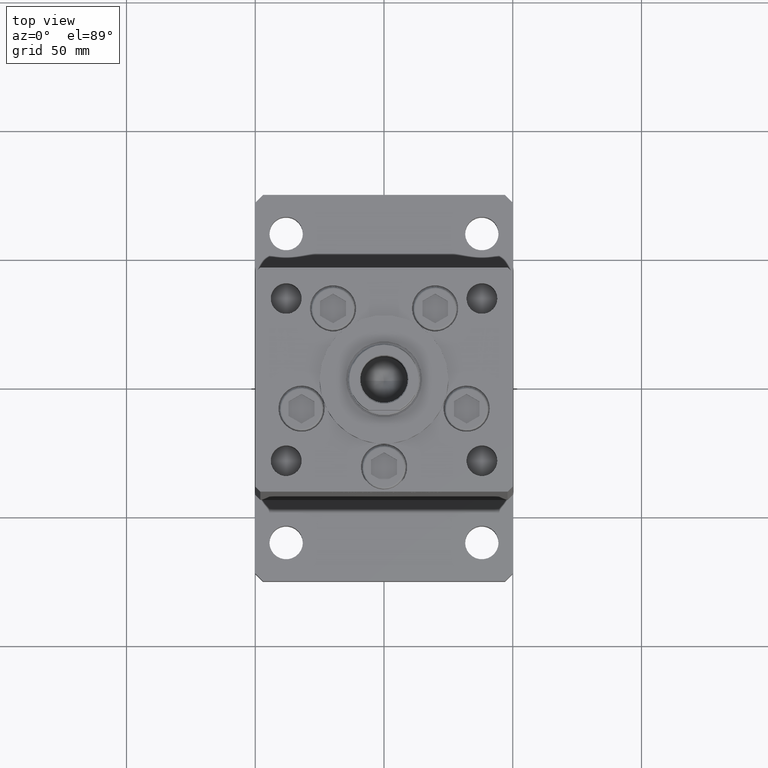
[diagram: clean part render]
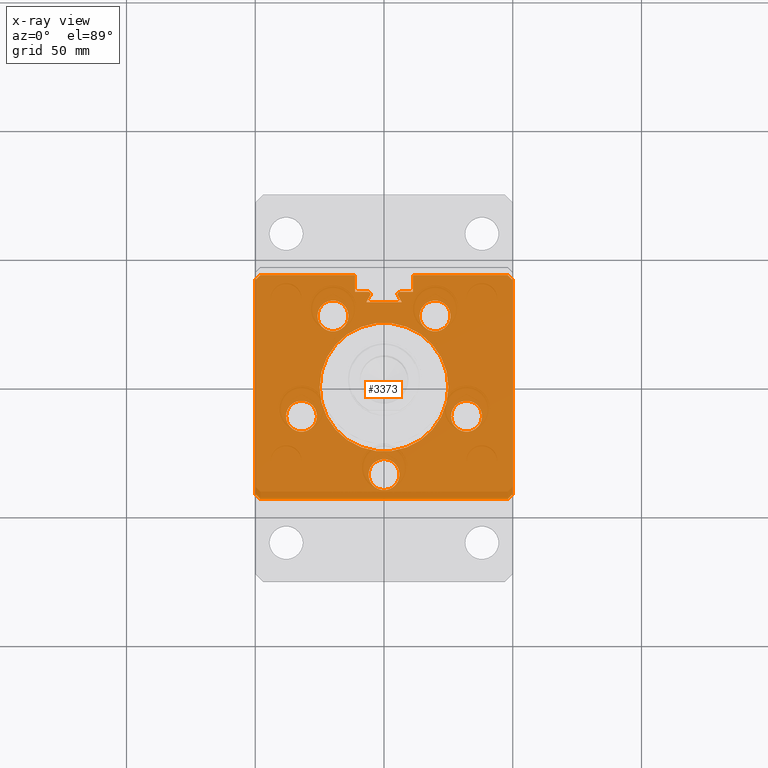
[diagram: x-ray — body ghosted, one internal face saturated and labeled with its STEP entity id]
A machine part, top view, then the same camera in x-ray: the body is ghosted and one INTERNAL B-rep face — a face not visible from any outside direction — is saturated and labeled: STEP entity #3373.
In plain terms, the highlighted planar face has unit normal (0, 0, -1).
Its self-contained STEP definition (entity closure, byte-faithful):
#58 = VERTEX_POINT ( 'NONE', #5850 ) ;
#451 = VERTEX_POINT ( 'NONE', #42141 ) ;
#480 = ORIENTED_EDGE ( 'NONE', *, *, #14333, .F. ) ;
#589 = VERTEX_POINT ( 'NONE', #30699 ) ;
#679 = LINE ( 'NONE', #33785, #33973 ) ;
#1650 = CARTESIAN_POINT ( 'NONE',  ( 4.163799117101000559E-15, -34.00000000000000000, 0.000000000000000000 ) ) ;
#2054 = CIRCLE ( 'NONE', #32417, 5.999999999999998224 ) ;
#2131 = FACE_BOUND ( 'NONE', #52309, .T. ) ;
#2296 = DIRECTION ( 'NONE',  ( -0.000000000000000000, -0.000000000000000000, -1.000000000000000000 ) ) ;
#2641 = CARTESIAN_POINT ( 'NONE',  ( -32.05550741379015989, -11.33333333333333570, 0.000000000000000000 ) ) ;
#2802 = VERTEX_POINT ( 'NONE', #27227 ) ;
#3373 = ADVANCED_FACE ( 'NONE', ( #10794, #2131, #39307, #43945, #36059, #39856, #14330 ), #35507, .T. ) ;
#3459 = EDGE_CURVE ( 'NONE', #451, #12507, #20307, .T. ) ;
#3574 = CARTESIAN_POINT ( 'NONE',  ( 50.00000000000001421, 41.49999999999999289, 0.000000000000000000 ) ) ;
#3786 = DIRECTION ( 'NONE',  ( 1.000000000000000000, 0.000000000000000000, 0.000000000000000000 ) ) ;
#3938 = DIRECTION ( 'NONE',  ( -0.000000000000000000, -1.000000000000000000, -0.000000000000000000 ) ) ;
#4102 = CARTESIAN_POINT ( 'NONE',  ( -50.00000000000001421, 41.49999999999999289, 0.000000000000000000 ) ) ;
#4200 = DIRECTION ( 'NONE',  ( 0.7071067811865474617, -0.7071067811865474617, 0.000000000000000000 ) ) ;
#4484 = VERTEX_POINT ( 'NONE', #18625 ) ;
#4496 = DIRECTION ( 'NONE',  ( -0.4999999999999996114, -0.8660254037844388186, -0.000000000000000000 ) ) ;
#4531 = CARTESIAN_POINT ( 'NONE',  ( -49.99999999999998579, -41.49999999999999289, 0.000000000000000000 ) ) ;
#4613 = CARTESIAN_POINT ( 'NONE',  ( 26.05550741379015989, -11.33333333333332682, 0.000000000000000000 ) ) ;
#4699 = ORIENTED_EDGE ( 'NONE', *, *, #34548, .T. ) ;
#4740 = CIRCLE ( 'NONE', #14248, 25.00000000000000000 ) ;
#4884 = ORIENTED_EDGE ( 'NONE', *, *, #37646, .F. ) ;
#5022 = VERTEX_POINT ( 'NONE', #17473 ) ;
#5115 = ORIENTED_EDGE ( 'NONE', *, *, #3459, .T. ) ;
#5325 = CARTESIAN_POINT ( 'NONE',  ( -48.00000000000001421, 43.50000000000000711, 0.000000000000000000 ) ) ;
#5569 = VERTEX_POINT ( 'NONE', #13530 ) ;
#5743 = DIRECTION ( 'NONE',  ( 0.000000000000000000, 1.000000000000000000, 0.000000000000000000 ) ) ;
#5850 = CARTESIAN_POINT ( 'NONE',  ( -13.82068048781373726, 27.62500000000000355, 0.000000000000000000 ) ) ;
#6186 = DIRECTION ( 'NONE',  ( -1.000000000000000000, 0.000000000000000000, -0.000000000000000000 ) ) ;
#6295 = VERTEX_POINT ( 'NONE', #4613 ) ;
#6719 = DIRECTION ( 'NONE',  ( 1.000000000000000000, -0.000000000000000000, -0.000000000000000000 ) ) ;
#6907 = VECTOR ( 'NONE', #26689, 1000.000000000000000 ) ;
#7122 = DIRECTION ( 'NONE',  ( -1.000000000000000000, 0.000000000000000000, 0.000000000000000000 ) ) ;
#7662 = VERTEX_POINT ( 'NONE', #45509 ) ;
#7858 = CIRCLE ( 'NONE', #52084, 0.9333333333340008142 ) ;
#7978 = EDGE_CURVE ( 'NONE', #6295, #7662, #33261, .T. ) ;
#8539 = CARTESIAN_POINT ( 'NONE',  ( -6.876153656360465050, 32.99999999999986500, 0.000000000000000000 ) ) ;
#8639 = CIRCLE ( 'NONE', #32952, 0.9333333333340008142 ) ;
#8801 = ORIENTED_EDGE ( 'NONE', *, *, #34509, .F. ) ;
#9015 = ORIENTED_EDGE ( 'NONE', *, *, #20191, .F. ) ;
#9237 = ORIENTED_EDGE ( 'NONE', *, *, #36544, .T. ) ;
#9348 = CARTESIAN_POINT ( 'NONE',  ( 0.000000000000000000, 0.000000000000000000, 0.000000000000000000 ) ) ;
#9616 = DIRECTION ( 'NONE',  ( 1.000000000000000000, 0.000000000000000000, 0.000000000000000000 ) ) ;
#9767 = CARTESIAN_POINT ( 'NONE',  ( 11.24999999999999822, 36.99999999999999289, 0.000000000000000000 ) ) ;
#9937 = ORIENTED_EDGE ( 'NONE', *, *, #51486, .F. ) ;
#10125 = CARTESIAN_POINT ( 'NONE',  ( -11.24999999999999822, 43.50000000000000000, 0.000000000000000000 ) ) ;
#10161 = EDGE_CURVE ( 'NONE', #2802, #5022, #4740, .T. ) ;
#10292 = DIRECTION ( 'NONE',  ( 1.000000000000000000, 0.000000000000000000, 0.000000000000000000 ) ) ;
#10315 = LINE ( 'NONE', #48087, #35537 ) ;
#10794 = FACE_BOUND ( 'NONE', #27155, .T. ) ;
#11138 = CARTESIAN_POINT ( 'NONE',  ( -11.24999999999999822, 43.50000000000000000, 0.000000000000000000 ) ) ;
#11198 = CIRCLE ( 'NONE', #41560, 5.999999999999998224 ) ;
#11276 = LINE ( 'NONE', #34898, #24043 ) ;
#11280 = VERTEX_POINT ( 'NONE', #24259 ) ;
#11730 = CARTESIAN_POINT ( 'NONE',  ( 32.05550741379015989, -11.33333333333332682, 0.000000000000000000 ) ) ;
#11789 = ORIENTED_EDGE ( 'NONE', *, *, #43529, .T. ) ;
#11818 = VECTOR ( 'NONE', #4200, 1000.000000000000114 ) ;
#11958 = VERTEX_POINT ( 'NONE', #49376 ) ;
#12385 = AXIS2_PLACEMENT_3D ( 'NONE', #30090, #46667, #29824 ) ;
#12507 = VERTEX_POINT ( 'NONE', #3574 ) ;
#12602 = CARTESIAN_POINT ( 'NONE',  ( -11.24999999999999822, 36.99999999999999289, 0.000000000000000000 ) ) ;
#13178 = EDGE_CURVE ( 'NONE', #14989, #58, #15074, .T. ) ;
#13192 = AXIS2_PLACEMENT_3D ( 'NONE', #35958, #39481, #14232 ) ;
#13291 = AXIS2_PLACEMENT_3D ( 'NONE', #33994, #50561, #33207 ) ;
#13498 = LINE ( 'NONE', #47426, #33858 ) ;
#13530 = CARTESIAN_POINT ( 'NONE',  ( 6.183333333333997928, 36.99999999999999289, 0.000000000000000000 ) ) ;
#13916 = ORIENTED_EDGE ( 'NONE', *, *, #48284, .F. ) ;
#14167 = CIRCLE ( 'NONE', #28062, 6.000000000000001776 ) ;
#14232 = DIRECTION ( 'NONE',  ( -1.000000000000000000, 0.000000000000000000, 0.000000000000000000 ) ) ;
#14248 = AXIS2_PLACEMENT_3D ( 'NONE', #24414, #40974, #3786 ) ;
#14330 = FACE_BOUND ( 'NONE', #45918, .T. ) ;
#14333 = EDGE_CURVE ( 'NONE', #4484, #47372, #2054, .T. ) ;
#14377 = CARTESIAN_POINT ( 'NONE',  ( 6.183333333333997928, 36.06666666666598786, 0.000000000000000000 ) ) ;
#14466 = ORIENTED_EDGE ( 'NONE', *, *, #36188, .F. ) ;
#14662 = VERTEX_POINT ( 'NONE', #35667 ) ;
#14989 = VERTEX_POINT ( 'NONE', #22312 ) ;
#15074 = CIRCLE ( 'NONE', #26337, 6.000000000000001776 ) ;
#15622 = VECTOR ( 'NONE', #49442, 1000.000000000000000 ) ;
#15905 = VERTEX_POINT ( 'NONE', #43693 ) ;
#15925 = LINE ( 'NONE', #28676, #25083 ) ;
#16229 = CARTESIAN_POINT ( 'NONE',  ( 48.00000000000000711, 43.50000000000000000, 0.000000000000000000 ) ) ;
#16346 = DIRECTION ( 'NONE',  ( -1.000000000000000000, 0.000000000000000000, 0.000000000000000000 ) ) ;
#16612 = CARTESIAN_POINT ( 'NONE',  ( 19.82068048781373548, 27.62500000000000711, 0.000000000000000000 ) ) ;
#16878 = EDGE_LOOP ( 'NONE', ( #20747, #40749 ) ) ;
#17473 = CARTESIAN_POINT ( 'NONE',  ( 25.00000000000000000, 3.061616997868383043E-15, 0.000000000000000000 ) ) ;
#18461 = CARTESIAN_POINT ( 'NONE',  ( 6.000000000000004441, -34.00000000000000000, 0.000000000000000000 ) ) ;
#18625 = CARTESIAN_POINT ( 'NONE',  ( -38.05550741379015989, -11.33333333333333570, 0.000000000000000000 ) ) ;
#18811 = ORIENTED_EDGE ( 'NONE', *, *, #28713, .T. ) ;
#19237 = AXIS2_PLACEMENT_3D ( 'NONE', #51533, #47737, #6186 ) ;
#19368 = DIRECTION ( 'NONE',  ( -1.000000000000000000, 0.000000000000000000, 0.000000000000000000 ) ) ;
#19638 = ORIENTED_EDGE ( 'NONE', *, *, #52233, .T. ) ;
#20092 = CARTESIAN_POINT ( 'NONE',  ( -11.24999999999999822, 36.99999999999999289, 0.000000000000000000 ) ) ;
#20191 = EDGE_CURVE ( 'NONE', #25283, #51602, #49276, .T. ) ;
#20307 = LINE ( 'NONE', #16229, #33947 ) ;
#20416 = CARTESIAN_POINT ( 'NONE',  ( -5.999999999999995559, -34.00000000000000000, 0.000000000000000000 ) ) ;
#20654 = LINE ( 'NONE', #4102, #15622 ) ;
#20747 = ORIENTED_EDGE ( 'NONE', *, *, #13178, .F. ) ;
#21045 = LINE ( 'NONE', #29710, #25918 ) ;
#21414 = EDGE_CURVE ( 'NONE', #29505, #5569, #34495, .T. ) ;
#21442 = CARTESIAN_POINT ( 'NONE',  ( -32.05550741379015989, -11.33333333333333570, 0.000000000000000000 ) ) ;
#21450 = EDGE_LOOP ( 'NONE', ( #32016, #41528, #39437, #9237, #39911, #19638, #51299, #23634, #18811, #47322, #14466, #5115, #4699, #11789, #9937, #9015, #4884, #46152, #36579 ) ) ;
#21621 = VERTEX_POINT ( 'NONE', #32357 ) ;
#21628 = VERTEX_POINT ( 'NONE', #20416 ) ;
#21888 = DIRECTION ( 'NONE',  ( -0.7071067811865463515, -0.7071067811865487940, 0.000000000000000000 ) ) ;
#22036 = DIRECTION ( 'NONE',  ( 0.000000000000000000, 0.000000000000000000, -1.000000000000000000 ) ) ;
#22312 = CARTESIAN_POINT ( 'NONE',  ( -25.82068048781374259, 27.62500000000000355, 0.000000000000000000 ) ) ;
#22669 = VERTEX_POINT ( 'NONE', #9767 ) ;
#22801 = EDGE_LOOP ( 'NONE', ( #36357, #31889 ) ) ;
#22839 = CARTESIAN_POINT ( 'NONE',  ( 47.99999999999998579, -43.50000000000000000, 0.000000000000000000 ) ) ;
#23284 = EDGE_CURVE ( 'NONE', #23805, #48450, #24756, .T. ) ;
#23374 = CARTESIAN_POINT ( 'NONE',  ( -6.183333333333997928, 36.06666666666598786, 0.000000000000000000 ) ) ;
#23562 = LINE ( 'NONE', #12602, #44584 ) ;
#23634 = ORIENTED_EDGE ( 'NONE', *, *, #21414, .T. ) ;
#23805 = VERTEX_POINT ( 'NONE', #38484 ) ;
#23944 = VECTOR ( 'NONE', #27217, 1000.000000000000000 ) ;
#24043 = VECTOR ( 'NONE', #51752, 1000.000000000000000 ) ;
#24259 = CARTESIAN_POINT ( 'NONE',  ( 11.24999999999999822, 43.50000000000000000, 0.000000000000000000 ) ) ;
#24414 = CARTESIAN_POINT ( 'NONE',  ( 0.000000000000000000, 0.000000000000000000, 0.000000000000000000 ) ) ;
#24603 = EDGE_CURVE ( 'NONE', #7662, #6295, #35182, .T. ) ;
#24756 = CIRCLE ( 'NONE', #31674, 5.999999999999998224 ) ;
#25083 = VECTOR ( 'NONE', #44985, 1000.000000000000000 ) ;
#25283 = VERTEX_POINT ( 'NONE', #4531 ) ;
#25341 = EDGE_CURVE ( 'NONE', #27381, #11958, #51184, .T. ) ;
#25558 = DIRECTION ( 'NONE',  ( 0.000000000000000000, 0.000000000000000000, -1.000000000000000000 ) ) ;
#25805 = ORIENTED_EDGE ( 'NONE', *, *, #7978, .F. ) ;
#25918 = VECTOR ( 'NONE', #5743, 1000.000000000000000 ) ;
#25964 = CARTESIAN_POINT ( 'NONE',  ( -6.183333333333997928, 36.06666666666598786, 0.000000000000000000 ) ) ;
#26337 = AXIS2_PLACEMENT_3D ( 'NONE', #39993, #52486, #19368 ) ;
#26681 = VERTEX_POINT ( 'NONE', #44352 ) ;
#26689 = DIRECTION ( 'NONE',  ( -1.000000000000000000, 1.888134395621013663E-16, 0.000000000000000000 ) ) ;
#26891 = DIRECTION ( 'NONE',  ( 1.000000000000000000, 0.000000000000000000, 0.000000000000000000 ) ) ;
#27155 = EDGE_LOOP ( 'NONE', ( #480, #8801 ) ) ;
#27217 = DIRECTION ( 'NONE',  ( 1.000000000000000000, -0.000000000000000000, -0.000000000000000000 ) ) ;
#27227 = CARTESIAN_POINT ( 'NONE',  ( -25.00000000000000000, 0.000000000000000000, 0.000000000000000000 ) ) ;
#27381 = VERTEX_POINT ( 'NONE', #20092 ) ;
#27696 = VERTEX_POINT ( 'NONE', #42197 ) ;
#28062 = AXIS2_PLACEMENT_3D ( 'NONE', #47282, #22036, #50549 ) ;
#28093 = DIRECTION ( 'NONE',  ( 1.000000000000000000, 0.000000000000000000, 0.000000000000000000 ) ) ;
#28300 = DIRECTION ( 'NONE',  ( 0.000000000000000000, 0.000000000000000000, -1.000000000000000000 ) ) ;
#28405 = CARTESIAN_POINT ( 'NONE',  ( -26.05550741379016344, -11.33333333333333570, 0.000000000000000000 ) ) ;
#28676 = CARTESIAN_POINT ( 'NONE',  ( 50.00000000000001421, 41.49999999999999289, 0.000000000000000000 ) ) ;
#28713 = EDGE_CURVE ( 'NONE', #5569, #22669, #11276, .T. ) ;
#28779 = ORIENTED_EDGE ( 'NONE', *, *, #10161, .T. ) ;
#29424 = CARTESIAN_POINT ( 'NONE',  ( -47.99999999999998579, -43.50000000000000000, 0.000000000000000000 ) ) ;
#29431 = CARTESIAN_POINT ( 'NONE',  ( 6.876153656360465050, 32.99999999999986500, 0.000000000000000000 ) ) ;
#29505 = VERTEX_POINT ( 'NONE', #34385 ) ;
#29710 = CARTESIAN_POINT ( 'NONE',  ( 11.24999999999999822, 36.99999999999999289, 0.000000000000000000 ) ) ;
#29824 = DIRECTION ( 'NONE',  ( -1.000000000000000000, 0.000000000000000000, 0.000000000000000000 ) ) ;
#30090 = CARTESIAN_POINT ( 'NONE',  ( 19.82068048781373548, 27.62500000000000711, 0.000000000000000000 ) ) ;
#30539 = CARTESIAN_POINT ( 'NONE',  ( -6.183333333333997928, 36.99999999999999289, 0.000000000000000000 ) ) ;
#30699 = CARTESIAN_POINT ( 'NONE',  ( 6.876153656360465050, 32.99999999999986500, 0.000000000000000000 ) ) ;
#30940 = DIRECTION ( 'NONE',  ( -0.000000000000000000, -0.000000000000000000, -1.000000000000000000 ) ) ;
#31233 = DIRECTION ( 'NONE',  ( -0.000000000000000000, -0.000000000000000000, -1.000000000000000000 ) ) ;
#31413 = CIRCLE ( 'NONE', #13192, 6.000000000000000000 ) ;
#31447 = VERTEX_POINT ( 'NONE', #37675 ) ;
#31674 = AXIS2_PLACEMENT_3D ( 'NONE', #16612, #44331, #7122 ) ;
#31762 = EDGE_CURVE ( 'NONE', #5022, #2802, #31903, .T. ) ;
#31783 = DIRECTION ( 'NONE',  ( -1.000000000000000000, 1.888134395621013663E-16, 0.000000000000000000 ) ) ;
#31889 = ORIENTED_EDGE ( 'NONE', *, *, #23284, .F. ) ;
#31903 = CIRCLE ( 'NONE', #41445, 25.00000000000000000 ) ;
#32016 = ORIENTED_EDGE ( 'NONE', *, *, #52252, .T. ) ;
#32165 = ORIENTED_EDGE ( 'NONE', *, *, #24603, .F. ) ;
#32357 = CARTESIAN_POINT ( 'NONE',  ( 49.99999999999998579, -41.49999999999999289, 0.000000000000000000 ) ) ;
#32417 = AXIS2_PLACEMENT_3D ( 'NONE', #21442, #37992, #42343 ) ;
#32952 = AXIS2_PLACEMENT_3D ( 'NONE', #23374, #31233, #26891 ) ;
#32961 = LINE ( 'NONE', #36504, #45401 ) ;
#33207 = DIRECTION ( 'NONE',  ( -1.000000000000000000, 0.000000000000000000, 0.000000000000000000 ) ) ;
#33261 = CIRCLE ( 'NONE', #13291, 5.999999999999998224 ) ;
#33694 = EDGE_LOOP ( 'NONE', ( #25805, #32165 ) ) ;
#33785 = CARTESIAN_POINT ( 'NONE',  ( -6.876153656360465050, 32.99999999999986500, 0.000000000000000000 ) ) ;
#33858 = VECTOR ( 'NONE', #38736, 1000.000000000000114 ) ;
#33947 = VECTOR ( 'NONE', #37125, 1000.000000000000000 ) ;
#33973 = VECTOR ( 'NONE', #4496, 1000.000000000000114 ) ;
#33994 = CARTESIAN_POINT ( 'NONE',  ( 32.05550741379015989, -11.33333333333332682, 0.000000000000000000 ) ) ;
#34228 = DIRECTION ( 'NONE',  ( -1.000000000000000000, 0.000000000000000000, 0.000000000000000000 ) ) ;
#34385 = CARTESIAN_POINT ( 'NONE',  ( 5.375042956467945388, 35.59999999999898534, 0.000000000000000000 ) ) ;
#34495 = CIRCLE ( 'NONE', #41455, 0.9333333333340008142 ) ;
#34509 = EDGE_CURVE ( 'NONE', #47372, #4484, #11198, .T. ) ;
#34548 = EDGE_CURVE ( 'NONE', #12507, #21621, #15925, .T. ) ;
#34898 = CARTESIAN_POINT ( 'NONE',  ( 6.183333333333997928, 36.99999999999999289, 0.000000000000000000 ) ) ;
#35182 = CIRCLE ( 'NONE', #40390, 5.999999999999998224 ) ;
#35507 = PLANE ( 'NONE',  #19237 ) ;
#35537 = VECTOR ( 'NONE', #52152, 1000.000000000000114 ) ;
#35667 = CARTESIAN_POINT ( 'NONE',  ( -5.375042956467945388, 35.59999999999898534, 0.000000000000000000 ) ) ;
#35693 = EDGE_CURVE ( 'NONE', #21628, #51861, #38946, .T. ) ;
#35848 = LINE ( 'NONE', #11138, #37320 ) ;
#35958 = CARTESIAN_POINT ( 'NONE',  ( 4.163799117101000559E-15, -34.00000000000000000, 0.000000000000000000 ) ) ;
#36049 = LINE ( 'NONE', #29431, #41093 ) ;
#36059 = FACE_BOUND ( 'NONE', #16878, .T. ) ;
#36102 = VERTEX_POINT ( 'NONE', #8539 ) ;
#36188 = EDGE_CURVE ( 'NONE', #451, #11280, #47340, .T. ) ;
#36357 = ORIENTED_EDGE ( 'NONE', *, *, #49732, .F. ) ;
#36504 = CARTESIAN_POINT ( 'NONE',  ( -47.99999999999998579, -43.50000000000000000, 0.000000000000000000 ) ) ;
#36526 = EDGE_CURVE ( 'NONE', #589, #29505, #10315, .T. ) ;
#36544 = EDGE_CURVE ( 'NONE', #15905, #14662, #8639, .T. ) ;
#36579 = ORIENTED_EDGE ( 'NONE', *, *, #41183, .F. ) ;
#37125 = DIRECTION ( 'NONE',  ( 0.7071067811865487940, -0.7071067811865463515, 0.000000000000000000 ) ) ;
#37320 = VECTOR ( 'NONE', #31783, 1000.000000000000000 ) ;
#37459 = EDGE_CURVE ( 'NONE', #22669, #11280, #21045, .T. ) ;
#37527 = VERTEX_POINT ( 'NONE', #22839 ) ;
#37553 = CIRCLE ( 'NONE', #12385, 5.999999999999998224 ) ;
#37646 = EDGE_CURVE ( 'NONE', #27696, #25283, #20654, .T. ) ;
#37652 = LINE ( 'NONE', #5325, #52050 ) ;
#37675 = CARTESIAN_POINT ( 'NONE',  ( -48.00000000000001421, 43.50000000000000711, 0.000000000000000000 ) ) ;
#37915 = ORIENTED_EDGE ( 'NONE', *, *, #35693, .F. ) ;
#37992 = DIRECTION ( 'NONE',  ( 0.000000000000000000, 0.000000000000000000, -1.000000000000000000 ) ) ;
#38484 = CARTESIAN_POINT ( 'NONE',  ( 25.82068048781373193, 27.62500000000000711, 0.000000000000000000 ) ) ;
#38736 = DIRECTION ( 'NONE',  ( -0.7071067811865474617, -0.7071067811865474617, 0.000000000000000000 ) ) ;
#38946 = CIRCLE ( 'NONE', #52839, 6.000000000000000000 ) ;
#39307 = FACE_BOUND ( 'NONE', #33694, .T. ) ;
#39437 = ORIENTED_EDGE ( 'NONE', *, *, #42662, .T. ) ;
#39468 = DIRECTION ( 'NONE',  ( 1.000000000000000000, 0.000000000000000000, 0.000000000000000000 ) ) ;
#39481 = DIRECTION ( 'NONE',  ( 0.000000000000000000, 0.000000000000000000, -1.000000000000000000 ) ) ;
#39856 = FACE_OUTER_BOUND ( 'NONE', #21450, .T. ) ;
#39911 = ORIENTED_EDGE ( 'NONE', *, *, #46602, .T. ) ;
#39993 = CARTESIAN_POINT ( 'NONE',  ( -19.82068048781374259, 27.62500000000000355, 0.000000000000000000 ) ) ;
#40390 = AXIS2_PLACEMENT_3D ( 'NONE', #11730, #28300, #16346 ) ;
#40749 = ORIENTED_EDGE ( 'NONE', *, *, #50567, .F. ) ;
#40974 = DIRECTION ( 'NONE',  ( -0.000000000000000000, 0.000000000000000000, 1.000000000000000000 ) ) ;
#41093 = VECTOR ( 'NONE', #6719, 1000.000000000000000 ) ;
#41121 = CARTESIAN_POINT ( 'NONE',  ( -49.99999999999998579, -41.49999999999999289, 0.000000000000000000 ) ) ;
#41183 = EDGE_CURVE ( 'NONE', #26681, #31447, #35848, .T. ) ;
#41331 = EDGE_CURVE ( 'NONE', #31447, #27696, #37652, .T. ) ;
#41445 = AXIS2_PLACEMENT_3D ( 'NONE', #9348, #42495, #9616 ) ;
#41455 = AXIS2_PLACEMENT_3D ( 'NONE', #14377, #30940, #10292 ) ;
#41528 = ORIENTED_EDGE ( 'NONE', *, *, #25341, .T. ) ;
#41560 = AXIS2_PLACEMENT_3D ( 'NONE', #2641, #52043, #44719 ) ;
#42141 = CARTESIAN_POINT ( 'NONE',  ( 48.00000000000000711, 43.50000000000000000, 0.000000000000000000 ) ) ;
#42197 = CARTESIAN_POINT ( 'NONE',  ( -50.00000000000001421, 41.49999999999999289, 0.000000000000000000 ) ) ;
#42343 = DIRECTION ( 'NONE',  ( -1.000000000000000000, 0.000000000000000000, 0.000000000000000000 ) ) ;
#42495 = DIRECTION ( 'NONE',  ( -0.000000000000000000, 0.000000000000000000, 1.000000000000000000 ) ) ;
#42662 = EDGE_CURVE ( 'NONE', #11958, #15905, #7858, .T. ) ;
#43529 = EDGE_CURVE ( 'NONE', #21621, #37527, #13498, .T. ) ;
#43693 = CARTESIAN_POINT ( 'NONE',  ( -5.249999999999996447, 36.06666666666598786, 0.000000000000000000 ) ) ;
#43945 = FACE_BOUND ( 'NONE', #22801, .T. ) ;
#44331 = DIRECTION ( 'NONE',  ( 0.000000000000000000, 0.000000000000000000, -1.000000000000000000 ) ) ;
#44352 = CARTESIAN_POINT ( 'NONE',  ( -11.24999999999999822, 43.50000000000000000, 0.000000000000000000 ) ) ;
#44584 = VECTOR ( 'NONE', #3938, 1000.000000000000000 ) ;
#44719 = DIRECTION ( 'NONE',  ( -1.000000000000000000, 0.000000000000000000, 0.000000000000000000 ) ) ;
#44985 = DIRECTION ( 'NONE',  ( -3.344045254895050973E-16, -1.000000000000000000, 0.000000000000000000 ) ) ;
#45401 = VECTOR ( 'NONE', #28093, 1000.000000000000000 ) ;
#45509 = CARTESIAN_POINT ( 'NONE',  ( 38.05550741379015989, -11.33333333333332682, 0.000000000000000000 ) ) ;
#45918 = EDGE_LOOP ( 'NONE', ( #28779, #47955 ) ) ;
#46152 = ORIENTED_EDGE ( 'NONE', *, *, #41331, .F. ) ;
#46602 = EDGE_CURVE ( 'NONE', #14662, #36102, #679, .T. ) ;
#46667 = DIRECTION ( 'NONE',  ( 0.000000000000000000, 0.000000000000000000, -1.000000000000000000 ) ) ;
#47282 = CARTESIAN_POINT ( 'NONE',  ( -19.82068048781374259, 27.62500000000000355, 0.000000000000000000 ) ) ;
#47322 = ORIENTED_EDGE ( 'NONE', *, *, #37459, .T. ) ;
#47340 = LINE ( 'NONE', #10125, #6907 ) ;
#47372 = VERTEX_POINT ( 'NONE', #28405 ) ;
#47426 = CARTESIAN_POINT ( 'NONE',  ( 49.99999999999998579, -41.49999999999999289, 0.000000000000000000 ) ) ;
#47737 = DIRECTION ( 'NONE',  ( 0.000000000000000000, 0.000000000000000000, -1.000000000000000000 ) ) ;
#47955 = ORIENTED_EDGE ( 'NONE', *, *, #31762, .T. ) ;
#48087 = CARTESIAN_POINT ( 'NONE',  ( 6.876153656360465050, 32.99999999999986500, 0.000000000000000000 ) ) ;
#48284 = EDGE_CURVE ( 'NONE', #51861, #21628, #31413, .T. ) ;
#48450 = VERTEX_POINT ( 'NONE', #49262 ) ;
#49262 = CARTESIAN_POINT ( 'NONE',  ( 13.82068048781373548, 27.62500000000000711, 0.000000000000000000 ) ) ;
#49276 = LINE ( 'NONE', #41121, #11818 ) ;
#49376 = CARTESIAN_POINT ( 'NONE',  ( -6.183333333333997928, 36.99999999999999289, 0.000000000000000000 ) ) ;
#49442 = DIRECTION ( 'NONE',  ( 3.344045254895050973E-16, -1.000000000000000000, 0.000000000000000000 ) ) ;
#49732 = EDGE_CURVE ( 'NONE', #48450, #23805, #37553, .T. ) ;
#50549 = DIRECTION ( 'NONE',  ( -1.000000000000000000, 0.000000000000000000, 0.000000000000000000 ) ) ;
#50561 = DIRECTION ( 'NONE',  ( 0.000000000000000000, 0.000000000000000000, -1.000000000000000000 ) ) ;
#50567 = EDGE_CURVE ( 'NONE', #58, #14989, #14167, .T. ) ;
#51184 = LINE ( 'NONE', #30539, #23944 ) ;
#51299 = ORIENTED_EDGE ( 'NONE', *, *, #36526, .T. ) ;
#51486 = EDGE_CURVE ( 'NONE', #51602, #37527, #32961, .T. ) ;
#51533 = CARTESIAN_POINT ( 'NONE',  ( 0.000000000000000000, 0.000000000000000000, 0.000000000000000000 ) ) ;
#51602 = VERTEX_POINT ( 'NONE', #29424 ) ;
#51752 = DIRECTION ( 'NONE',  ( 1.000000000000000000, 0.000000000000000000, 0.000000000000000000 ) ) ;
#51861 = VERTEX_POINT ( 'NONE', #18461 ) ;
#52043 = DIRECTION ( 'NONE',  ( 0.000000000000000000, 0.000000000000000000, -1.000000000000000000 ) ) ;
#52050 = VECTOR ( 'NONE', #21888, 1000.000000000000000 ) ;
#52084 = AXIS2_PLACEMENT_3D ( 'NONE', #25964, #2296, #39468 ) ;
#52152 = DIRECTION ( 'NONE',  ( -0.4999999999999996114, 0.8660254037844388186, 0.000000000000000000 ) ) ;
#52233 = EDGE_CURVE ( 'NONE', #36102, #589, #36049, .T. ) ;
#52252 = EDGE_CURVE ( 'NONE', #26681, #27381, #23562, .T. ) ;
#52309 = EDGE_LOOP ( 'NONE', ( #37915, #13916 ) ) ;
#52486 = DIRECTION ( 'NONE',  ( 0.000000000000000000, 0.000000000000000000, -1.000000000000000000 ) ) ;
#52839 = AXIS2_PLACEMENT_3D ( 'NONE', #1650, #25558, #34228 ) ;